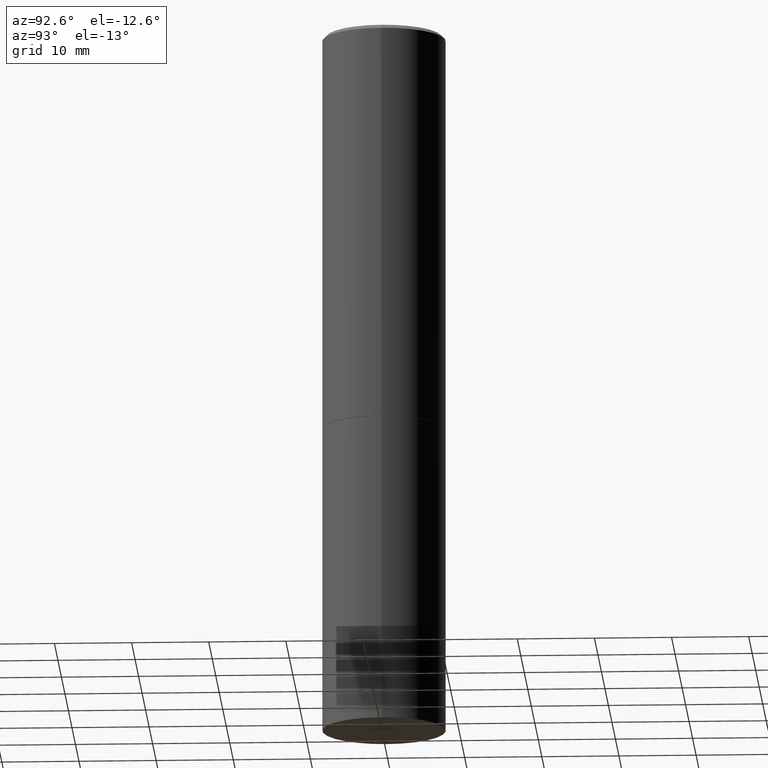
[diagram: clean part render]
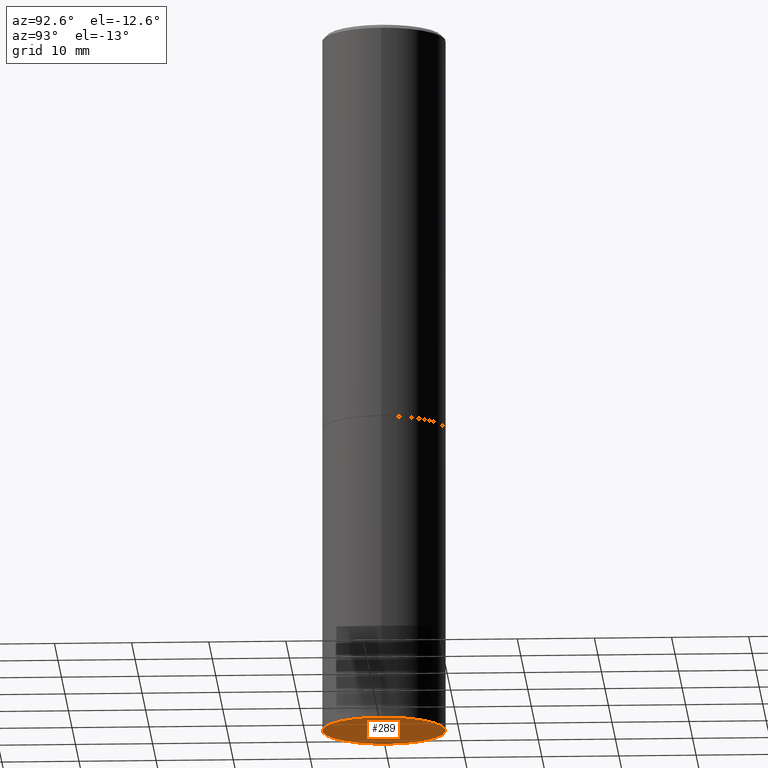
[diagram: same view with one face highlighted and labeled with its STEP entity id]
A machine part, auxiliary view. The second image highlights one B-rep face of the part: STEP entity #289.
In plain terms, the highlighted planar face has unit normal (0, -0, -1).
Its self-contained STEP definition (entity closure, byte-faithful):
#6 = EDGE_CURVE ( 'NONE', #172, #43, #211, .T. ) ;
#43 = VERTEX_POINT ( 'NONE', #271 ) ;
#48 = DIRECTION ( 'NONE',  ( 2.438088387897960049E-29, -3.491481338843145188E-15, -1.000000000000000000 ) ) ;
#96 = CARTESIAN_POINT ( 'NONE',  ( 0.3149500000000000077, -1.484542950462716186E-14, -3.621999999999999886 ) ) ;
#106 = DIRECTION ( 'NONE',  ( -2.445468806185136597E-29, 3.491481338843145583E-15, 1.000000000000000000 ) ) ;
#140 = CARTESIAN_POINT ( 'NONE',  ( 2.199284095337378223E-15, 0.3149499999999873512, -3.622000000000000774 ) ) ;
#143 = DIRECTION ( 'NONE',  ( -2.445468806185136597E-29, 3.491481338843145583E-15, 1.000000000000000000 ) ) ;
#159 = CIRCLE ( 'NONE', #294, 0.3149500000000000077 ) ;
#163 = CARTESIAN_POINT ( 'NONE',  ( 8.857488016002564476E-29, -1.264614540928987199E-14, -3.621999999999999886 ) ) ;
#167 = ORIENTED_EDGE ( 'NONE', *, *, #6, .F. ) ;
#172 = VERTEX_POINT ( 'NONE', #96 ) ;
#195 = ORIENTED_EDGE ( 'NONE', *, *, #251, .F. ) ;
#211 = CIRCLE ( 'NONE', #239, 0.3149500000000000077 ) ;
#230 = DIRECTION ( 'NONE',  ( 1.000000000000000000, -6.982962677686263555E-15, 0.000000000000000000 ) ) ;
#239 = AXIS2_PLACEMENT_3D ( 'NONE', #338, #106, #230 ) ;
#248 = PLANE ( 'NONE',  #301 ) ;
#251 = EDGE_CURVE ( 'NONE', #43, #172, #159, .T. ) ;
#271 = CARTESIAN_POINT ( 'NONE',  ( -0.3149500000000000077, -7.659098656808343322E-15, -3.621999999999999886 ) ) ;
#289 = ADVANCED_FACE ( 'NONE', ( #312 ), #248, .T. ) ;
#294 = AXIS2_PLACEMENT_3D ( 'NONE', #163, #143, #330 ) ;
#301 = AXIS2_PLACEMENT_3D ( 'NONE', #140, #48, #361 ) ;
#310 = EDGE_LOOP ( 'NONE', ( #167, #195 ) ) ;
#312 = FACE_OUTER_BOUND ( 'NONE', #310, .T. ) ;
#330 = DIRECTION ( 'NONE',  ( 1.000000000000000000, -6.982962677686263555E-15, 0.000000000000000000 ) ) ;
#338 = CARTESIAN_POINT ( 'NONE',  ( 8.857488016002564476E-29, -1.264614540928987199E-14, -3.621999999999999886 ) ) ;
#361 = DIRECTION ( 'NONE',  ( -1.000000000000000000, 6.982962677686265922E-15, -4.876176775795935793E-29 ) ) ;